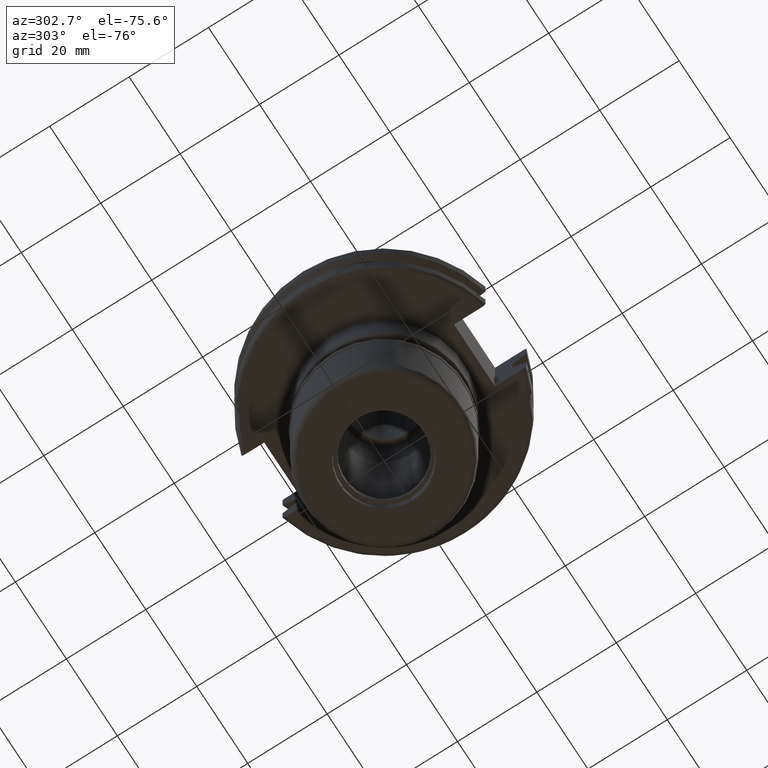
[diagram: clean part render]
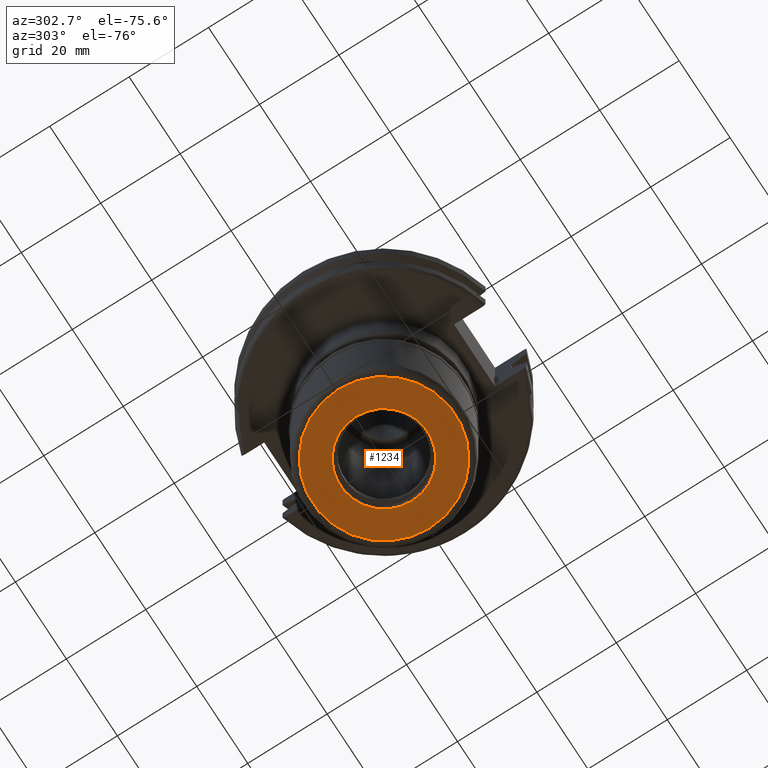
[diagram: same view with one face highlighted and labeled with its STEP entity id]
A machine part, auxiliary view. The second image highlights one B-rep face of the part: STEP entity #1234.
In plain terms, the highlighted planar face has unit normal (0, -0, 1).
Its self-contained STEP definition (entity closure, byte-faithful):
#19 = CARTESIAN_POINT ( 'NONE',  ( 0.0000000000000000000, 0.0000000000000000000, -59.09999999999998721 ) ) ;
#43 = DIRECTION ( 'NONE',  ( 1.000000000000000000, 0.0000000000000000000, 0.0000000000000000000 ) ) ;
#224 = CARTESIAN_POINT ( 'NONE',  ( 0.0000000000000000000, 0.0000000000000000000, -59.09999999999998721 ) ) ;
#305 = VERTEX_POINT ( 'NONE', #1502 ) ;
#320 = EDGE_CURVE ( 'NONE', #1249, #1249, #1909, .T. ) ;
#355 = AXIS2_PLACEMENT_3D ( 'NONE', #2034, #917, #1394 ) ;
#422 = EDGE_LOOP ( 'NONE', ( #1352 ) ) ;
#536 = FACE_OUTER_BOUND ( 'NONE', #422, .T. ) ;
#611 = PLANE ( 'NONE',  #355 ) ;
#896 = ORIENTED_EDGE ( 'NONE', *, *, #1510, .T. ) ;
#917 = DIRECTION ( 'NONE',  ( 0.0000000000000000000, -0.0000000000000000000, 1.000000000000000000 ) ) ;
#1234 = ADVANCED_FACE ( 'NONE', ( #536, #1846 ), #611, .F. ) ;
#1249 = VERTEX_POINT ( 'NONE', #1637 ) ;
#1256 = EDGE_LOOP ( 'NONE', ( #896 ) ) ;
#1297 = DIRECTION ( 'NONE',  ( -0.0000000000000000000, -0.0000000000000000000, 1.000000000000000000 ) ) ;
#1332 = AXIS2_PLACEMENT_3D ( 'NONE', #224, #1965, #1464 ) ;
#1352 = ORIENTED_EDGE ( 'NONE', *, *, #320, .F. ) ;
#1394 = DIRECTION ( 'NONE',  ( 1.000000000000000000, 0.0000000000000000000, 0.0000000000000000000 ) ) ;
#1464 = DIRECTION ( 'NONE',  ( 1.000000000000000000, 0.0000000000000000000, 0.0000000000000000000 ) ) ;
#1502 = CARTESIAN_POINT ( 'NONE',  ( 11.00000000000001066, 0.0000000000000000000, -59.09999999999998721 ) ) ;
#1510 = EDGE_CURVE ( 'NONE', #305, #305, #1927, .T. ) ;
#1637 = CARTESIAN_POINT ( 'NONE',  ( 17.99999999999998934, 0.0000000000000000000, -59.09999999999998721 ) ) ;
#1666 = AXIS2_PLACEMENT_3D ( 'NONE', #19, #1297, #43 ) ;
#1846 = FACE_BOUND ( 'NONE', #1256, .T. ) ;
#1909 = CIRCLE ( 'NONE', #1332, 17.99999999999998934 ) ;
#1927 = CIRCLE ( 'NONE', #1666, 11.00000000000001066 ) ;
#1965 = DIRECTION ( 'NONE',  ( -0.0000000000000000000, -0.0000000000000000000, 1.000000000000000000 ) ) ;
#2034 = CARTESIAN_POINT ( 'NONE',  ( 0.0000000000000000000, 11.00000000000001066, -59.09999999999998721 ) ) ;